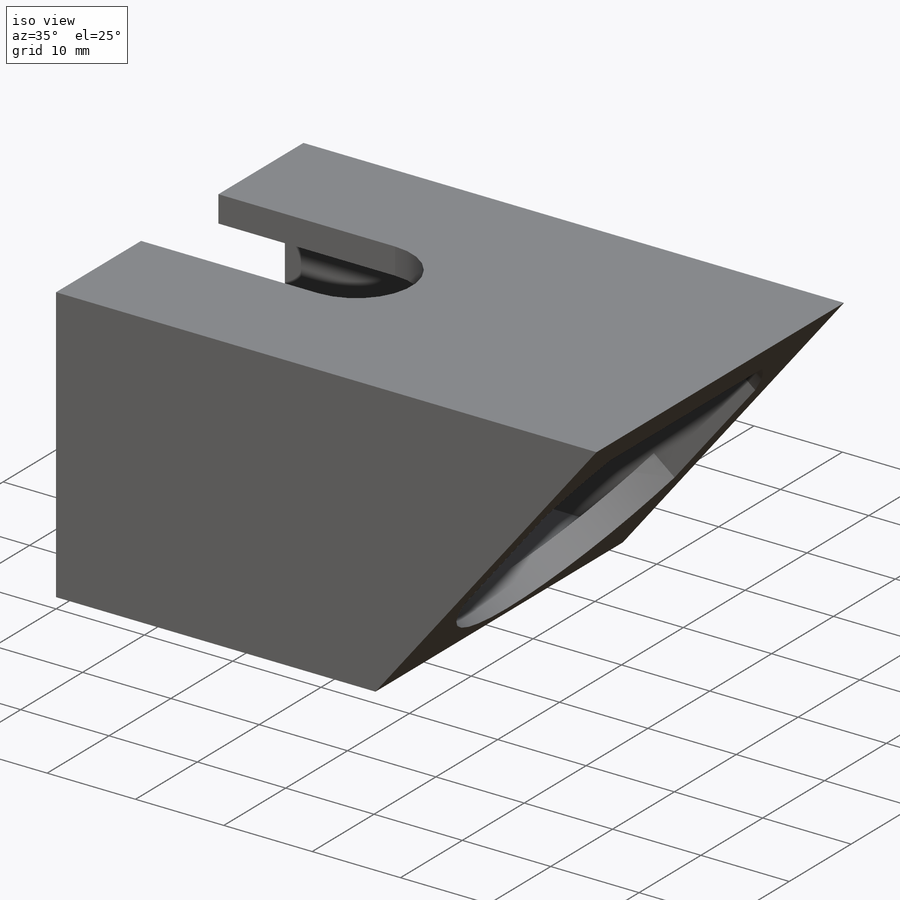
[diagram: iso view]
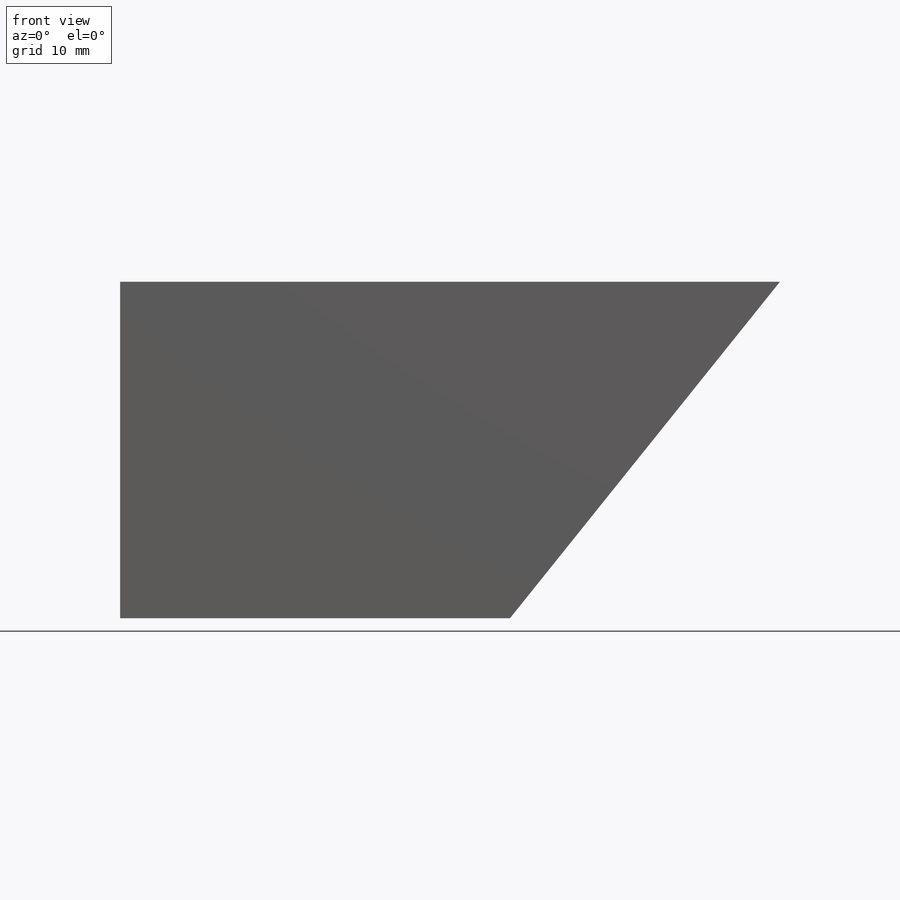
[diagram: front view]
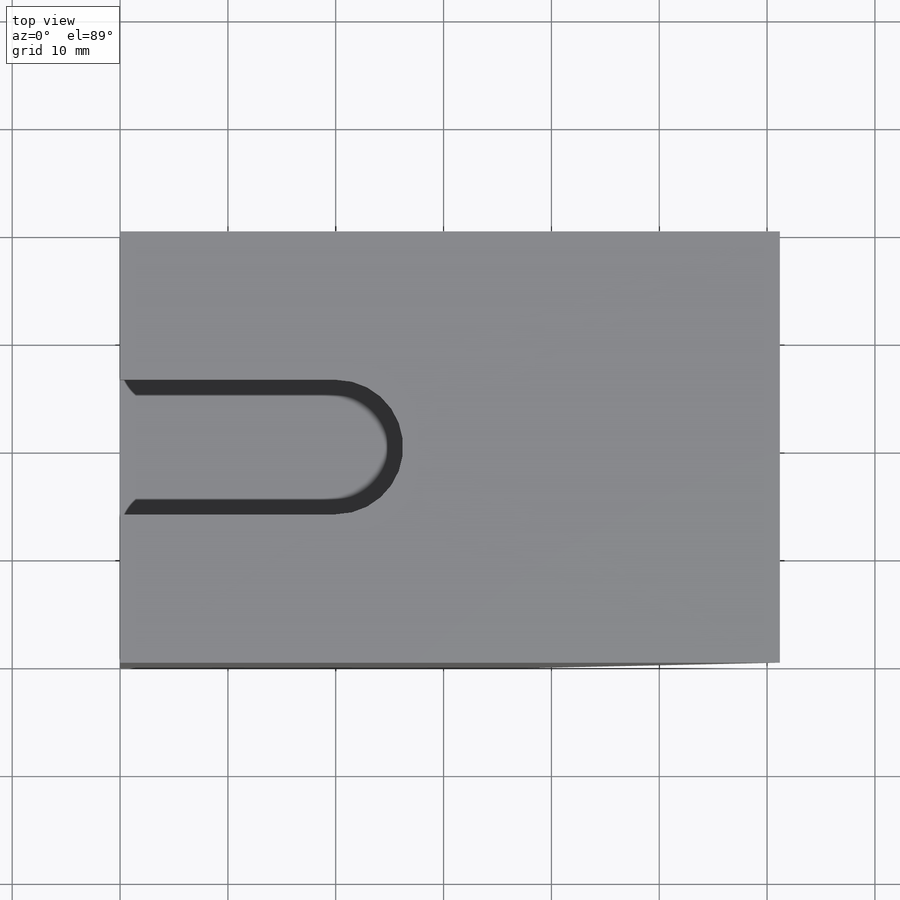
[diagram: top view]
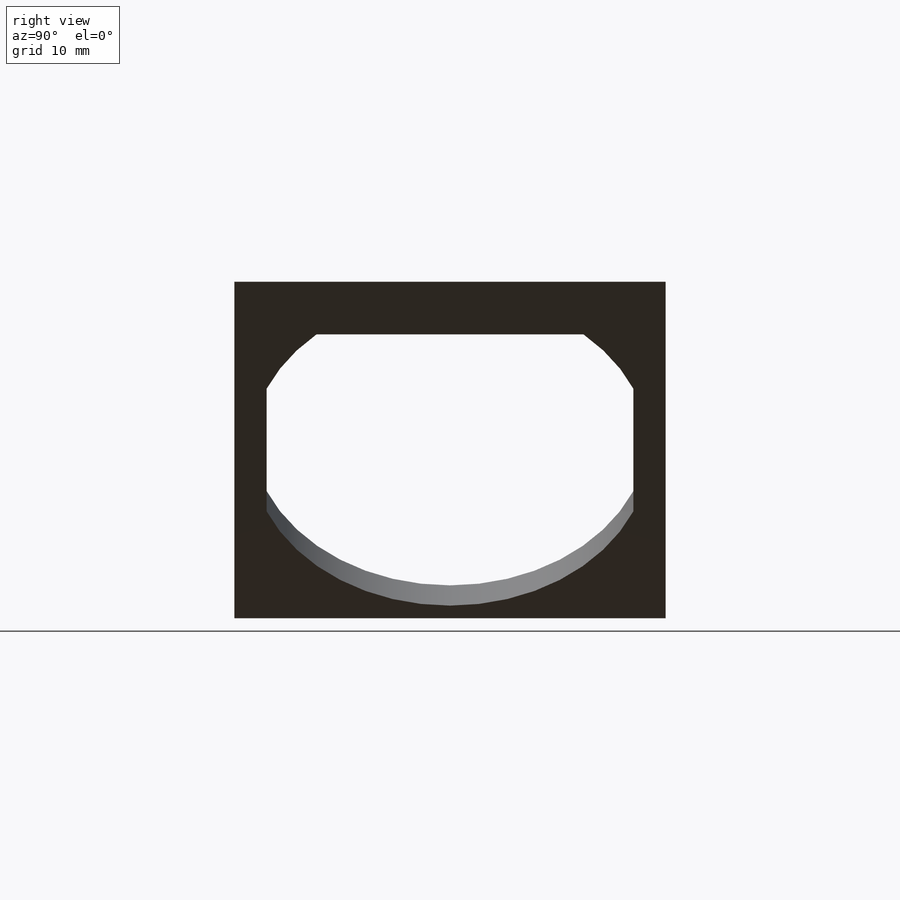
[diagram: right view]
SOLIDWORKS PART (.sldprt)
format: sldprt  version: not decoded by parser v0  size: 422,912 bytes
history: native  units: mm
features: sketch x12, cut_extrude x8, extrude x3, chamfer x3, material x1 (+13 scaffold rows collapsed)
feature tree (40):
  scaffold x13  (default folders/planes/origin — collapsed)
  material  "Material <not specified>"
  sketch  "Sketch1"  dims[D1=40.0mm D2=1.0mm D3=20.0mm D4=10.0mm]
  extrude  "Boss-Extrude1"  Depth=20mm
  sketch  "Sketch2"  dims[D1=37.0mm D3=3.0mm D2=45.0mm]
  sketch  "Sketch3"  dims[D1=3.0mm]
  cut_extrude  "Cut-Extrude1"  Depth=3mm
  sketch  "Sketch4"
  cut_extrude  "Cut-Extrude2"  [1 undecoded]
  sketch  "Sketch5"  dims[D1=12.5mm]
  cut_extrude  "Cut-Extrude3"  [1 undecoded]
  sketch  "Sketch7"  dims[D1=3.0mm D3=25.0mm D2=6.0]
  cut_extrude  "Cut-Extrude4"  [1 undecoded]
  sketch  "Sketch6"  dims[D1=16.2mm D2=7.0mm]
  extrude  "Boss-Extrude2"  Depth=1.5mm
  chamfer  "Chamfer3"  Distance=1.5mm Angle=45deg
  sketch  "Sketch8"  dims[D1=5.5mm]
  cut_extrude  "Cut-Extrude5"  Depth=2mm
  sketch  "Sketch9"  dims[D1=3.5mm D2=3.0mm]
  cut_extrude  "Cut-Extrude6"  [1 undecoded]
  sketch  "Sketch10"
  extrude  "Boss-Extrude3"  [1 undecoded]
  chamfer  "Chamfer1"  Distance=4mm Angle=45deg
  chamfer  "Chamfer2"  Distance=3.5mm Angle=45deg
  sketch  "Sketch11"  dims[D1=2.0mm]
  cut_extrude  "Cut-Extrude7"  Depth=0.5mm
  sketch  "Sketch13"
  cut_extrude  "Cut-Extrude8"  Depth=3.15mm
decode coverage: 18 of 26 modeling features carry decoded parameters
note: 5 parameter values undecoded
summary: no parameter record found for 5 features
note: suppression state not decoded; provenance and decode notes live in map.json
